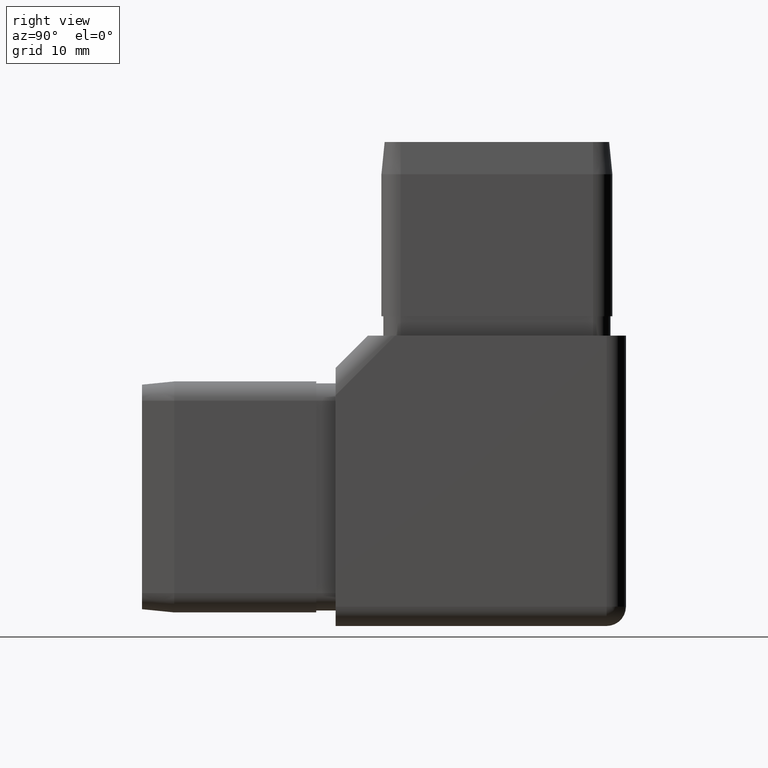
[diagram: clean part render]
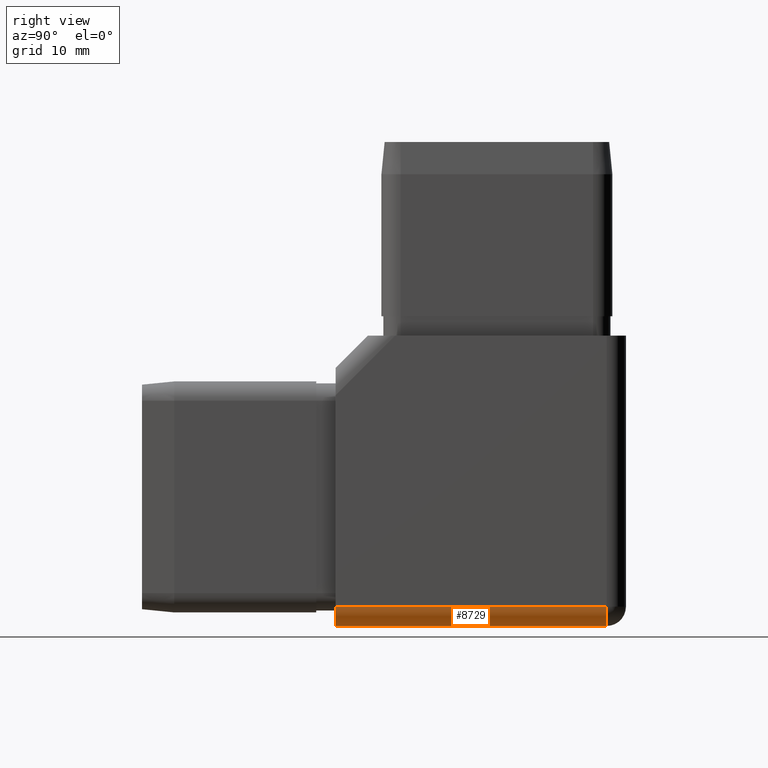
[diagram: same view with one face highlighted and labeled with its STEP entity id]
A machine part, right view. The second image highlights one B-rep face of the part: STEP entity #8729.
In plain terms, the highlighted cylindrical surface (edge-blend (fillet) strip) has radius 3 mm, axis along (-0, 1, -0).
Its self-contained STEP definition (entity closure, byte-faithful):
#308 = ORIENTED_EDGE ( 'NONE', *, *, #9992, .F. ) ;
#867 = DIRECTION ( 'NONE',  ( 0.0000000000000000000, 0.0000000000000000000, 1.000000000000000000 ) ) ;
#932 = EDGE_CURVE ( 'NONE', #10941, #1416, #20438, .T. ) ;
#1392 = EDGE_CURVE ( 'NONE', #16570, #10941, #20737, .T. ) ;
#1416 = VERTEX_POINT ( 'NONE', #16520 ) ;
#2109 = DIRECTION ( 'NONE',  ( -1.000000000000000000, 0.0000000000000000000, 0.0000000000000000000 ) ) ;
#3547 = EDGE_LOOP ( 'NONE', ( #308, #4673, #4975, #9974 ) ) ;
#3758 = DIRECTION ( 'NONE',  ( 1.541976423090495400E-016, -1.000000000000000000, 0.0000000000000000000 ) ) ;
#4040 = VECTOR ( 'NONE', #3758, 1000.000000000000000 ) ;
#4673 = ORIENTED_EDGE ( 'NONE', *, *, #18273, .F. ) ;
#4734 = AXIS2_PLACEMENT_3D ( 'NONE', #4852, #21936, #867 ) ;
#4852 = CARTESIAN_POINT ( 'NONE',  ( 17.00000000000000400, -22.50000000000000000, -19.49999999999999600 ) ) ;
#4975 = ORIENTED_EDGE ( 'NONE', *, *, #932, .F. ) ;
#7258 = CARTESIAN_POINT ( 'NONE',  ( 19.99999999999999600, 22.50000000000000000, -19.49999999999999600 ) ) ;
#7349 = DIRECTION ( 'NONE',  ( -1.541976423090495400E-016, 1.000000000000000000, 0.0000000000000000000 ) ) ;
#8422 = CARTESIAN_POINT ( 'NONE',  ( 19.99999999999999600, 19.50000000000000000, -19.49999999999999600 ) ) ;
#8729 = ADVANCED_FACE ( 'NONE', ( #9730 ), #19769, .T. ) ;
#9730 = FACE_OUTER_BOUND ( 'NONE', #3547, .T. ) ;
#9974 = ORIENTED_EDGE ( 'NONE', *, *, #1392, .F. ) ;
#9992 = EDGE_CURVE ( 'NONE', #16343, #16570, #14731, .T. ) ;
#10941 = VERTEX_POINT ( 'NONE', #8422 ) ;
#12697 = CARTESIAN_POINT ( 'NONE',  ( 16.99999999999999600, 19.50000000000000000, -19.49999999999999600 ) ) ;
#13039 = DIRECTION ( 'NONE',  ( 0.0000000000000000000, 0.0000000000000000000, 1.000000000000000000 ) ) ;
#14731 = CIRCLE ( 'NONE', #4734, 2.999999999999999100 ) ;
#14785 = CARTESIAN_POINT ( 'NONE',  ( 20.00000000000000400, -22.50000000000000000, -19.49999999999998200 ) ) ;
#15005 = LINE ( 'NONE', #22796, #4040 ) ;
#15870 = AXIS2_PLACEMENT_3D ( 'NONE', #12697, #24025, #13039 ) ;
#16343 = VERTEX_POINT ( 'NONE', #17704 ) ;
#16520 = CARTESIAN_POINT ( 'NONE',  ( 16.99999999999999600, 19.50000000000000000, -22.50000000000000000 ) ) ;
#16570 = VERTEX_POINT ( 'NONE', #14785 ) ;
#17268 = CARTESIAN_POINT ( 'NONE',  ( 16.99999999999999600, 22.50000000000000000, -19.49999999999999600 ) ) ;
#17704 = CARTESIAN_POINT ( 'NONE',  ( 17.00000000000000700, -22.50000000000000000, -22.50000000000000000 ) ) ;
#18273 = EDGE_CURVE ( 'NONE', #1416, #16343, #15005, .T. ) ;
#19245 = VECTOR ( 'NONE', #7349, 1000.000000000000000 ) ;
#19769 = CYLINDRICAL_SURFACE ( 'NONE', #23945, 2.999999999999999100 ) ;
#20438 = CIRCLE ( 'NONE', #15870, 2.999999999999999100 ) ;
#20737 = LINE ( 'NONE', #7258, #19245 ) ;
#21152 = DIRECTION ( 'NONE',  ( -1.541976423090495400E-016, 1.000000000000000000, -0.0000000000000000000 ) ) ;
#21936 = DIRECTION ( 'NONE',  ( -0.0000000000000000000, -1.000000000000000000, -0.0000000000000000000 ) ) ;
#22796 = CARTESIAN_POINT ( 'NONE',  ( 17.00000000000000000, 2.621359919253842600E-015, -22.50000000000000000 ) ) ;
#23945 = AXIS2_PLACEMENT_3D ( 'NONE', #17268, #21152, #2109 ) ;
#24025 = DIRECTION ( 'NONE',  ( -0.0000000000000000000, 1.000000000000000000, 0.0000000000000000000 ) ) ;